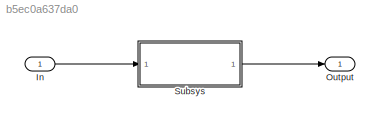
MODEL slx_b5ec0a637da0
KIND model
CONFIG AbsTol = auto
CONFIG EnableMultiTasking = off
CONFIG FixedStep = auto
CONFIG MaxStep = auto
CONFIG MinStep = auto
CONFIG RelTol = 1e-3
CONFIG SampleTimeConstraint = Unconstrained
CONFIG SolverName = VariableStepAuto
CONFIG StartTime = 0.0
CONFIG StopTime = 10.0
BLOCK [Inport] In
BLOCK [Outport] Output
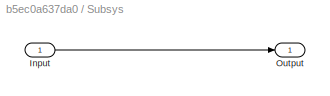
BLOCK [SubSystem] Subsys
BLOCK [Inport] Subsys/Input
BLOCK [Outport] Subsys/Output
LINE In:1 -> Subsys:1
LINE Subsys/Input:1 -> Subsys/Output:1
LINE Subsys:1 -> Output:1
